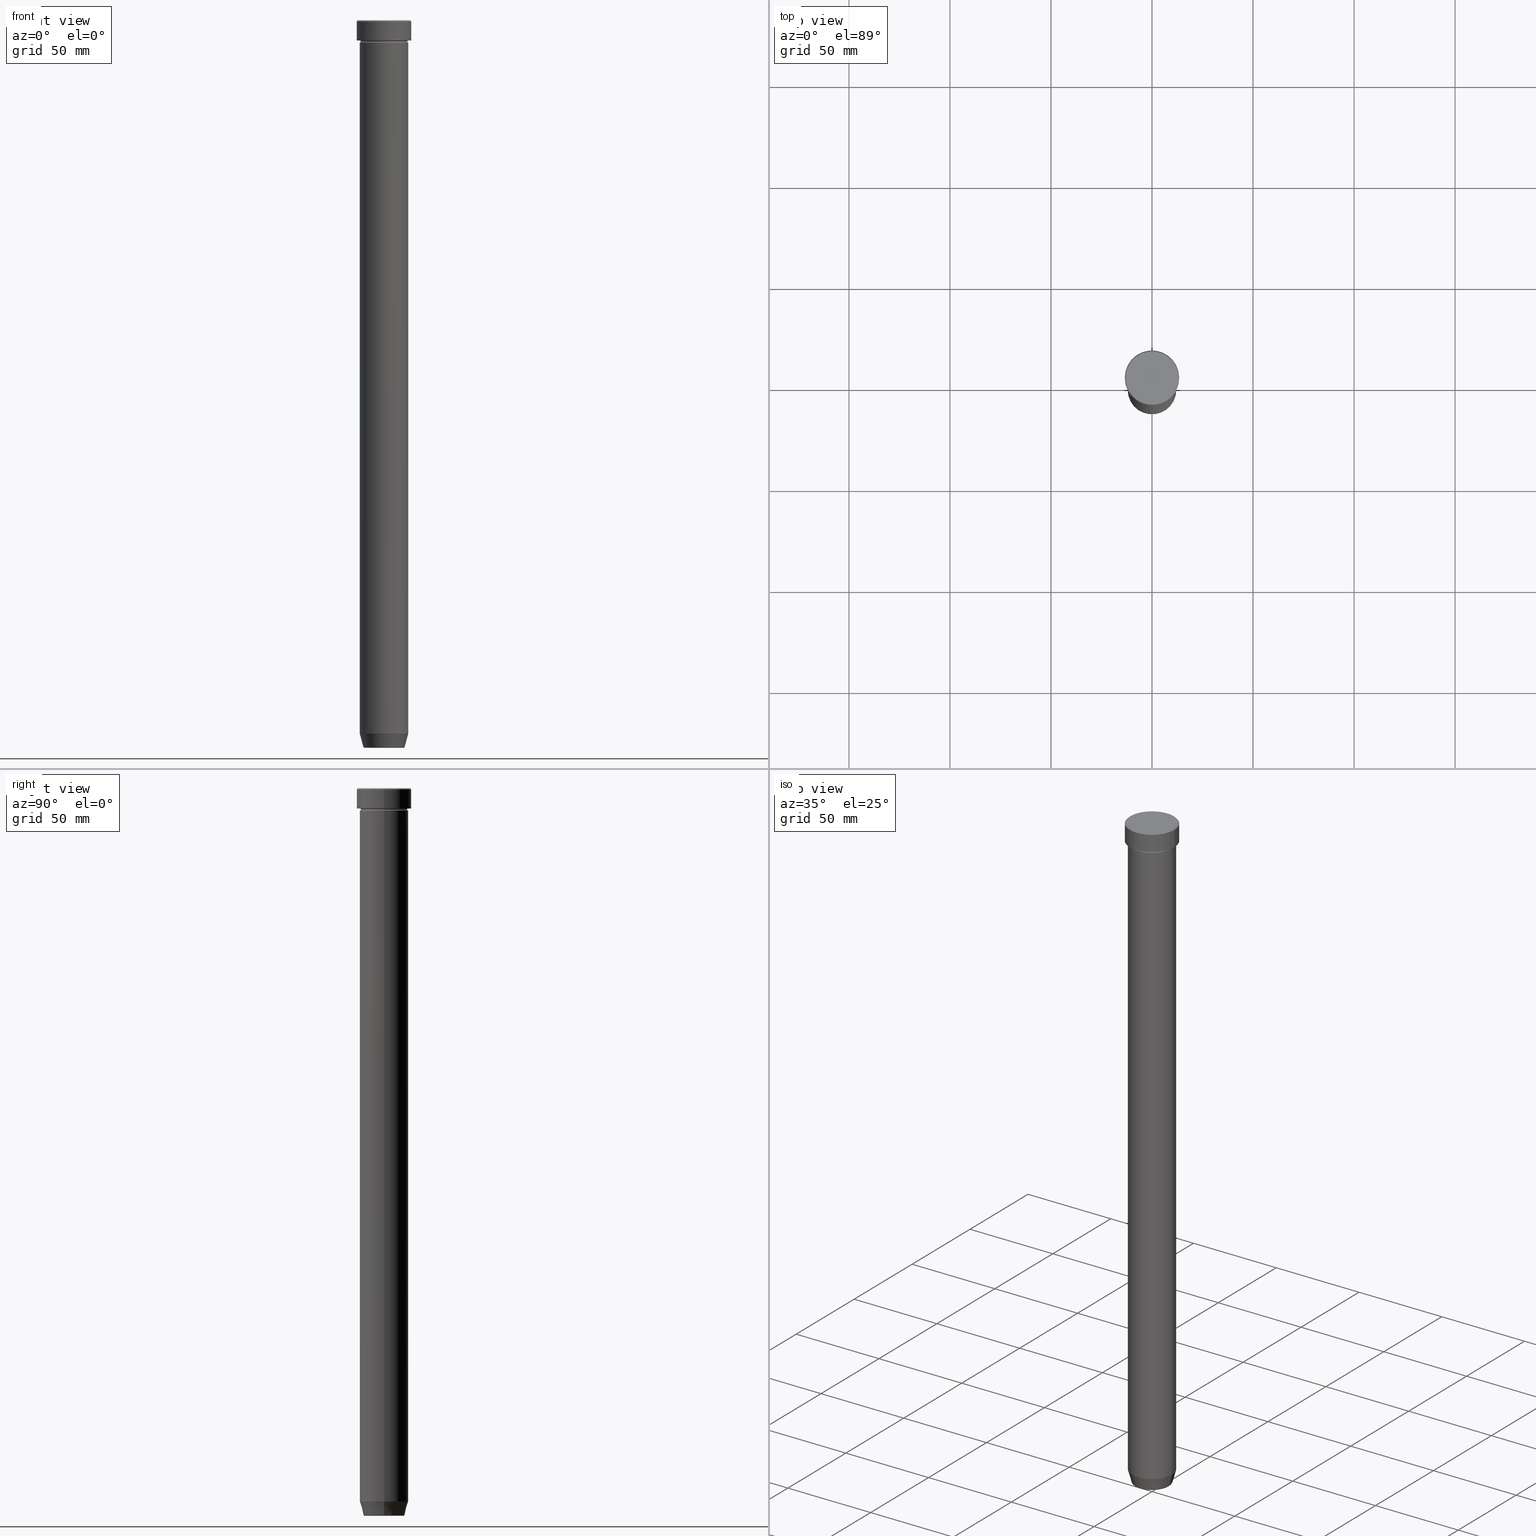
[diagram: canonical four-view strip — front | top / right | iso, engineering-drawing reading convention]
A machine part, canonical four-view strip (front | top / right | iso — engineering-drawing reading convention). The complete STEP part file that produces these views, byte-faithful:
ISO-10303-21;
HEADER;
FILE_DESCRIPTION (( 'STEP AP203' ),
    '1' );
FILE_NAME ('75dd.STEP',
    '2024-01-02T17:39:47',
    ( '' ),
    ( '' ),
    'SwSTEP 2.0',
    'SolidWorks 2019',
    '' );
FILE_SCHEMA (( 'CONFIG_CONTROL_DESIGN' ));
ENDSEC;

DATA;
#1 = ORIENTED_EDGE ( 'NONE', *, *, #330, .F. ) ;
#2 = CARTESIAN_POINT ( 'NONE',  ( 0.000000000000000000, 0.000000000000000000, -27.00000000000000000 ) ) ;
#3 = DIRECTION ( 'NONE',  ( 0.000000000000000000, 0.000000000000000000, -1.000000000000000000 ) ) ;
#4 = VERTEX_POINT ( 'NONE', #591 ) ;
#5 = DIRECTION ( 'NONE',  ( -0.000000000000000000, -0.000000000000000000, 1.000000000000000000 ) ) ;
#6 = TOROIDAL_SURFACE ( 'NONE', #549, 9.740692158992644067, 0.5000000000000000000 ) ;
#7 = APPROVAL_PERSON_ORGANIZATION ( #415, #57, #50 ) ;
#8 = DIRECTION ( 'NONE',  ( -0.000000000000000000, -0.000000000000000000, 1.000000000000000000 ) ) ;
#9 = AXIS2_PLACEMENT_3D ( 'NONE', #372, #321, #284 ) ;
#10 = CARTESIAN_POINT ( 'NONE',  ( 0.000000000000000000, 0.000000000000000000, -360.0000000000000568 ) ) ;
#11 = ORIENTED_EDGE ( 'NONE', *, *, #117, .T. ) ;
#12 = PLANE ( 'NONE',  #506 ) ;
#13 = ADVANCED_FACE ( 'NONE', ( #184 ), #190, .T. ) ;
#14 = AXIS2_PLACEMENT_3D ( 'NONE', #88, #381, #518 ) ;
#15 = DIRECTION ( 'NONE',  ( -0.000000000000000000, -0.000000000000000000, 1.000000000000000000 ) ) ;
#16 = AXIS2_PLACEMENT_3D ( 'NONE', #256, #436, #251 ) ;
#17 = CARTESIAN_POINT ( 'NONE',  ( 0.000000000000000000, 0.000000000000000000, 0.000000000000000000 ) ) ;
#18 = EDGE_LOOP ( 'NONE', ( #120, #365, #574, #249 ) ) ;
#19 = ADVANCED_BREP_SHAPE_REPRESENTATION ( '75dd', ( #367, #163, #180 ), #56 ) ;
#20 = DIRECTION ( 'NONE',  ( -0.000000000000000000, -0.000000000000000000, 1.000000000000000000 ) ) ;
#21 = VERTEX_POINT ( 'NONE', #454 ) ;
#22 = CARTESIAN_POINT ( 'NONE',  ( -12.99999999999999645, 0.000000000000000000, 0.000000000000000000 ) ) ;
#23 = DIRECTION ( 'NONE',  ( 0.000000000000000000, 0.000000000000000000, -1.000000000000000000 ) ) ;
#24 = ADVANCED_FACE ( 'NONE', ( #32, #409 ), #379, .T. ) ;
#25 = CARTESIAN_POINT ( 'NONE',  ( 0.000000000000000000, 0.000000000000000000, 0.000000000000000000 ) ) ;
#26 = ORIENTED_EDGE ( 'NONE', *, *, #497, .T. ) ;
#27 = PERSON_AND_ORGANIZATION_ROLE ( 'design_supplier' ) ;
#28 = DIRECTION ( 'NONE',  ( 1.224646799147353207E-16, 1.000000000000000000, 0.000000000000000000 ) ) ;
#29 = ORIENTED_EDGE ( 'NONE', *, *, #275, .F. ) ;
#30 = EDGE_LOOP ( 'NONE', ( #452, #318 ) ) ;
#31 = ADVANCED_FACE ( 'NONE', ( #37 ), #461, .F. ) ;
#32 = FACE_BOUND ( 'NONE', #404, .T. ) ;
#33 = DIRECTION ( 'NONE',  ( 0.000000000000000000, 0.000000000000000000, 1.000000000000000000 ) ) ;
#34 = PRODUCT ( '75dd', '75dd', '', ( #537 ) ) ;
#35 = AXIS2_PLACEMENT_3D ( 'NONE', #589, #530, #401 ) ;
#36 = AXIS2_PLACEMENT_3D ( 'NONE', #364, #76, #369 ) ;
#37 = FACE_OUTER_BOUND ( 'NONE', #430, .T. ) ;
#38 = CARTESIAN_POINT ( 'NONE',  ( 0.000000000000000000, 0.000000000000000000, -359.5000000000000568 ) ) ;
#39 = ORIENTED_EDGE ( 'NONE', *, *, #164, .F. ) ;
#40 = CARTESIAN_POINT ( 'NONE',  ( -12.00000000000000000, 0.000000000000000000, -9.999999999999998224 ) ) ;
#41 = CC_DESIGN_PERSON_AND_ORGANIZATION_ASSIGNMENT ( #402, #501, ( #310 ) ) ;
#42 = CARTESIAN_POINT ( 'NONE',  ( 0.000000000000000000, 0.000000000000000000, -10.49999999999999822 ) ) ;
#43 = CARTESIAN_POINT ( 'NONE',  ( 0.000000000000000000, 0.000000000000000000, -11.00000000000000000 ) ) ;
#44 = CC_DESIGN_PERSON_AND_ORGANIZATION_ASSIGNMENT ( #516, #551, ( #138 ) ) ;
#45 = AXIS2_PLACEMENT_3D ( 'NONE', #423, #130, #511 ) ;
#46 = EDGE_LOOP ( 'NONE', ( #375, #229, #493, #514 ) ) ;
#47 = CC_DESIGN_SECURITY_CLASSIFICATION ( #138, ( #189 ) ) ;
#48 = DIRECTION ( 'NONE',  ( -0.000000000000000000, -0.000000000000000000, 1.000000000000000000 ) ) ;
#49 = VERTEX_POINT ( 'NONE', #89 ) ;
#50 = APPROVAL_ROLE ( '' ) ;
#51 = CARTESIAN_POINT ( 'NONE',  ( 0.000000000000000000, 0.000000000000000000, -10.49999999999999822 ) ) ;
#52 = EDGE_CURVE ( 'NONE', #176, #21, #280, .T. ) ;
#53 = DIRECTION ( 'NONE',  ( 0.2588190451025233485, 0.000000000000000000, 0.9659258262890675351 ) ) ;
#54 = ORIENTED_EDGE ( 'NONE', *, *, #320, .F. ) ;
#55 = AXIS2_PLACEMENT_3D ( 'NONE', #552, #188, #599 ) ;
#56 =( GEOMETRIC_REPRESENTATION_CONTEXT ( 3 ) GLOBAL_UNCERTAINTY_ASSIGNED_CONTEXT ( ( #564 ) ) GLOBAL_UNIT_ASSIGNED_CONTEXT ( ( #166, #220, #112 ) ) REPRESENTATION_CONTEXT ( 'NONE', 'WORKASPACE' ) );
#57 = APPROVAL ( #331, 'NEUR�EN�' ) ;
#58 = LINE ( 'NONE', #565, #477 ) ;
#59 = CARTESIAN_POINT ( 'NONE',  ( 12.00000000000000000, 0.000000000000000000, 0.000000000000000000 ) ) ;
#60 = ADVANCED_FACE ( 'NONE', ( #503 ), #467, .T. ) ;
#61 = ORIENTED_EDGE ( 'NONE', *, *, #330, .T. ) ;
#62 = CARTESIAN_POINT ( 'NONE',  ( 0.000000000000000000, 0.000000000000000000, 0.000000000000000000 ) ) ;
#63 = DIRECTION ( 'NONE',  ( -1.000000000000000000, 1.224646799147353454E-16, 0.000000000000000000 ) ) ;
#64 = AXIS2_PLACEMENT_3D ( 'NONE', #133, #470, #592 ) ;
#65 = FACE_OUTER_BOUND ( 'NONE', #355, .T. ) ;
#66 = ORIENTED_EDGE ( 'NONE', *, *, #87, .T. ) ;
#67 = DIRECTION ( 'NONE',  ( 1.000000000000000000, 0.000000000000000000, 0.000000000000000000 ) ) ;
#68 = CIRCLE ( 'NONE', #35, 11.50000000000000000 ) ;
#69 = EDGE_CURVE ( 'NONE', #481, #314, #86, .T. ) ;
#70 = VERTEX_POINT ( 'NONE', #240 ) ;
#71 = CARTESIAN_POINT ( 'NONE',  ( -11.50000000000000000, 1.438959988998139963E-15, -10.49999999999999822 ) ) ;
#72 = FACE_OUTER_BOUND ( 'NONE', #217, .T. ) ;
#73 = ORIENTED_EDGE ( 'NONE', *, *, #356, .T. ) ;
#74 = PERSON_AND_ORGANIZATION ( #324, #524 ) ;
#75 = DIRECTION ( 'NONE',  ( -0.2588190451025233485, 3.169619151431796372E-17, 0.9659258262890675351 ) ) ;
#76 = DIRECTION ( 'NONE',  ( -0.000000000000000000, -0.000000000000000000, 1.000000000000000000 ) ) ;
#77 = AXIS2_PLACEMENT_3D ( 'NONE', #25, #114, #106 ) ;
#78 = LOCAL_TIME ( 18, 39, 47.00000000000000000, #373 ) ;
#79 = ADVANCED_FACE ( 'NONE', ( #198 ), #238, .T. ) ;
#80 = ORIENTED_EDGE ( 'NONE', *, *, #378, .F. ) ;
#81 = DATE_AND_TIME ( #121, #577 ) ;
#82 = APPROVAL_STATUS ( 'not_yet_approved' ) ;
#83 = CARTESIAN_POINT ( 'NONE',  ( -10.22365507213716995, 1.360806402472381364E-15, -359.6294095225512706 ) ) ;
#84 = VECTOR ( 'NONE', #206, 1000.000000000000000 ) ;
#85 = ORIENTED_EDGE ( 'NONE', *, *, #520, .T. ) ;
#86 = CIRCLE ( 'NONE', #246, 9.740692158992644067 ) ;
#87 = EDGE_CURVE ( 'NONE', #215, #135, #290, .T. ) ;
#88 = CARTESIAN_POINT ( 'NONE',  ( 0.000000000000000000, 0.000000000000000000, 0.000000000000000000 ) ) ;
#89 = CARTESIAN_POINT ( 'NONE',  ( -12.00000000000000000, 1.469576158976823947E-15, -353.0000000000000568 ) ) ;
#90 = DATE_AND_TIME ( #557, #596 ) ;
#91 = CARTESIAN_POINT ( 'NONE',  ( 0.000000000000000000, 3.796405077356795904E-14, -360.0000000000000568 ) ) ;
#92 = DIRECTION ( 'NONE',  ( 1.000000000000000000, 0.000000000000000000, 0.000000000000000000 ) ) ;
#93 = AXIS2_PLACEMENT_3D ( 'NONE', #579, #28, #63 ) ;
#94 = COORDINATED_UNIVERSAL_TIME_OFFSET ( 1, 0, .AHEAD. ) ;
#95 = CARTESIAN_POINT ( 'NONE',  ( 0.000000000000000000, 0.000000000000000000, -360.0000000000000568 ) ) ;
#96 = EDGE_CURVE ( 'NONE', #49, #287, #172, .T. ) ;
#97 = CARTESIAN_POINT ( 'NONE',  ( 0.000000000000000000, 0.000000000000000000, -353.0000000000000568 ) ) ;
#98 = DIRECTION ( 'NONE',  ( 1.000000000000000000, 0.000000000000000000, 0.000000000000000000 ) ) ;
#99 = DIRECTION ( 'NONE',  ( -1.000000000000000000, 0.000000000000000000, 0.000000000000000000 ) ) ;
#100 = CIRCLE ( 'NONE', #16, 12.00000000000000000 ) ;
#101 = EDGE_CURVE ( 'NONE', #433, #572, #68, .T. ) ;
#102 = DIRECTION ( 'NONE',  ( 1.000000000000000000, 0.000000000000000000, 0.000000000000000000 ) ) ;
#103 = ORIENTED_EDGE ( 'NONE', *, *, #513, .F. ) ;
#104 = CYLINDRICAL_SURFACE ( 'NONE', #336, 12.00000000000000000 ) ;
#105 = EDGE_LOOP ( 'NONE', ( #224, #113, #103, #1 ) ) ;
#106 = DIRECTION ( 'NONE',  ( -1.000000000000000000, 0.000000000000000000, 0.000000000000000000 ) ) ;
#107 = DIRECTION ( 'NONE',  ( 0.000000000000000000, 0.000000000000000000, -1.000000000000000000 ) ) ;
#108 = ORIENTED_EDGE ( 'NONE', *, *, #134, .F. ) ;
#109 = CIRCLE ( 'NONE', #168, 0.5000000000000004441 ) ;
#110 = VECTOR ( 'NONE', #141, 1000.000000000000000 ) ;
#111 = CARTESIAN_POINT ( 'NONE',  ( -12.00000000000000000, 1.469576158976823947E-15, -11.00000000000000000 ) ) ;
#112 =( NAMED_UNIT ( * ) SI_UNIT ( $, .STERADIAN. ) SOLID_ANGLE_UNIT ( ) );
#113 = ORIENTED_EDGE ( 'NONE', *, *, #320, .T. ) ;
#114 = DIRECTION ( 'NONE',  ( 0.000000000000000000, 0.000000000000000000, -1.000000000000000000 ) ) ;
#115 = VERTEX_POINT ( 'NONE', #413 ) ;
#116 = CARTESIAN_POINT ( 'NONE',  ( 0.000000000000000000, 0.000000000000000000, 0.000000000000000000 ) ) ;
#117 = EDGE_CURVE ( 'NONE', #481, #237, #244, .T. ) ;
#118 = VECTOR ( 'NONE', #374, 1000.000000000000000 ) ;
#119 = ORIENTED_EDGE ( 'NONE', *, *, #175, .T. ) ;
#120 = ORIENTED_EDGE ( 'NONE', *, *, #536, .F. ) ;
#121 = CALENDAR_DATE ( 2024, 2, 1 ) ;
#122 = DATE_AND_TIME ( #543, #78 ) ;
#123 = CARTESIAN_POINT ( 'NONE',  ( 12.00000000000000000, 0.000000000000000000, -27.00000000000000000 ) ) ;
#124 = EDGE_CURVE ( 'NONE', #237, #49, #262, .T. ) ;
#125 = LINE ( 'NONE', #554, #538 ) ;
#126 = AXIS2_PLACEMENT_3D ( 'NONE', #598, #419, #466 ) ;
#127 = ORIENTED_EDGE ( 'NONE', *, *, #124, .T. ) ;
#128 = DIRECTION ( 'NONE',  ( -1.000000000000000000, 0.000000000000000000, -0.000000000000000000 ) ) ;
#129 = DATE_AND_TIME ( #384, #316 ) ;
#130 = DIRECTION ( 'NONE',  ( -0.000000000000000000, -1.000000000000000000, -0.000000000000000000 ) ) ;
#131 = ORIENTED_EDGE ( 'NONE', *, *, #96, .T. ) ;
#132 = DIRECTION ( 'NONE',  ( -0.000000000000000000, -0.000000000000000000, 1.000000000000000000 ) ) ;
#133 = CARTESIAN_POINT ( 'NONE',  ( 9.740692158992644067, 0.000000000000000000, -359.5000000000000568 ) ) ;
#134 = EDGE_CURVE ( 'NONE', #70, #187, #325, .T. ) ;
#135 = VERTEX_POINT ( 'NONE', #587 ) ;
#136 = CIRCLE ( 'NONE', #420, 10.22365507213716995 ) ;
#137 = AXIS2_PLACEMENT_3D ( 'NONE', #403, #313, #92 ) ;
#138 = SECURITY_CLASSIFICATION ( '', '', #212 ) ;
#139 = PLANE ( 'NONE',  #14 ) ;
#140 = ORIENTED_EDGE ( 'NONE', *, *, #442, .T. ) ;
#141 = DIRECTION ( 'NONE',  ( -0.000000000000000000, -0.000000000000000000, 1.000000000000000000 ) ) ;
#142 = EDGE_LOOP ( 'NONE', ( #207, #269, #450, #344 ) ) ;
#143 = APPROVAL ( #82, 'NEUR�EN�' ) ;
#144 = CARTESIAN_POINT ( 'NONE',  ( -9.740692158992644067, 1.222463696683473224E-15, -360.0000000000000568 ) ) ;
#145 = CIRCLE ( 'NONE', #346, 12.00000000000000000 ) ;
#146 = VECTOR ( 'NONE', #567, 1000.000000000000000 ) ;
#147 = DIRECTION ( 'NONE',  ( 0.7071067811865439090, 8.659560562354888485E-17, -0.7071067811865512365 ) ) ;
#148 = ORIENTED_EDGE ( 'NONE', *, *, #241, .F. ) ;
#149 = AXIS2_PLACEMENT_3D ( 'NONE', #427, #424, #342 ) ;
#150 = CARTESIAN_POINT ( 'NONE',  ( 12.99999999999999645, 1.622657008870242882E-15, 0.000000000000000000 ) ) ;
#151 = DIRECTION ( 'NONE',  ( 0.000000000000000000, 0.000000000000000000, -1.000000000000000000 ) ) ;
#152 = CARTESIAN_POINT ( 'NONE',  ( 12.99999999999999645, 1.592040838891558701E-15, 0.000000000000000000 ) ) ;
#153 = EDGE_CURVE ( 'NONE', #237, #243, #136, .T. ) ;
#154 = DIRECTION ( 'NONE',  ( -0.000000000000000000, -0.000000000000000000, 1.000000000000000000 ) ) ;
#155 = ORIENTED_EDGE ( 'NONE', *, *, #265, .T. ) ;
#156 = VECTOR ( 'NONE', #75, 1000.000000000000227 ) ;
#157 = TOROIDAL_SURFACE ( 'NONE', #245, 12.00000000000000000, 0.5000000000000000000 ) ;
#158 = COORDINATED_UNIVERSAL_TIME_OFFSET ( 1, 0, .AHEAD. ) ;
#159 = AXIS2_PLACEMENT_3D ( 'NONE', #457, #595, #225 ) ;
#160 = CARTESIAN_POINT ( 'NONE',  ( 0.000000000000000000, 0.000000000000000000, -359.6294095225512706 ) ) ;
#161 = ORIENTED_EDGE ( 'NONE', *, *, #389, .F. ) ;
#162 = CARTESIAN_POINT ( 'NONE',  ( 0.000000000000000000, 0.000000000000000000, -10.49999999999999822 ) ) ;
#163 = MANIFOLD_SOLID_BREP ( 'Zaoblit4', #490 ) ;
#164 = EDGE_CURVE ( 'NONE', #489, #227, #315, .T. ) ;
#165 = EDGE_LOOP ( 'NONE', ( #437, #561 ) ) ;
#166 =( LENGTH_UNIT ( ) NAMED_UNIT ( * ) SI_UNIT ( .MILLI., .METRE. ) );
#167 = DIRECTION ( 'NONE',  ( 1.000000000000000000, 0.000000000000000000, 0.000000000000000000 ) ) ;
#168 = AXIS2_PLACEMENT_3D ( 'NONE', #463, #226, #151 ) ;
#169 = AXIS2_PLACEMENT_3D ( 'NONE', #396, #20, #343 ) ;
#170 = ORIENTED_EDGE ( 'NONE', *, *, #253, .T. ) ;
#171 = DIRECTION ( 'NONE',  ( 0.000000000000000000, 0.000000000000000000, -1.000000000000000000 ) ) ;
#172 = CIRCLE ( 'NONE', #338, 12.00000000000000000 ) ;
#173 = APPROVAL_STATUS ( 'not_yet_approved' ) ;
#174 = LINE ( 'NONE', #22, #84 ) ;
#175 = EDGE_CURVE ( 'NONE', #465, #21, #174, .T. ) ;
#176 = VERTEX_POINT ( 'NONE', #358 ) ;
#177 = FACE_OUTER_BOUND ( 'NONE', #46, .T. ) ;
#178 = DIRECTION ( 'NONE',  ( 1.000000000000000000, 0.000000000000000000, 0.000000000000000000 ) ) ;
#179 = CARTESIAN_POINT ( 'NONE',  ( 0.000000000000000000, 0.000000000000000000, -0.5000000000000091038 ) ) ;
#180 = AXIS2_PLACEMENT_3D ( 'NONE', #362, #33, #453 ) ;
#181 = CARTESIAN_POINT ( 'NONE',  ( 0.000000000000000000, 13.50000000000000000, -9.999999999999998224 ) ) ;
#182 = APPLICATION_CONTEXT ( 'configuration controlled 3d designs of mechanical parts and assemblies' ) ;
#183 = DIRECTION ( 'NONE',  ( 1.000000000000000000, 0.000000000000000000, 0.000000000000000000 ) ) ;
#184 = FACE_OUTER_BOUND ( 'NONE', #142, .T. ) ;
#185 = EDGE_CURVE ( 'NONE', #4, #176, #496, .T. ) ;
#186 = PLANE ( 'NONE',  #199 ) ;
#187 = VERTEX_POINT ( 'NONE', #111 ) ;
#188 = DIRECTION ( 'NONE',  ( -0.000000000000000000, -0.000000000000000000, 1.000000000000000000 ) ) ;
#189 = PRODUCT_DEFINITION_FORMATION_WITH_SPECIFIED_SOURCE ( 'LIBOVOLN�', '', #34, .NOT_KNOWN. ) ;
#190 = CONICAL_SURFACE ( 'NONE', #191, 10.12435565298211948, 0.2617993877991521279 ) ;
#191 = AXIS2_PLACEMENT_3D ( 'NONE', #414, #132, #178 ) ;
#192 = FACE_OUTER_BOUND ( 'NONE', #386, .T. ) ;
#193 = EDGE_CURVE ( 'NONE', #135, #215, #335, .T. ) ;
#194 = ORIENTED_EDGE ( 'NONE', *, *, #193, .F. ) ;
#195 = DIRECTION ( 'NONE',  ( 1.000000000000000000, 0.000000000000000000, 0.000000000000000000 ) ) ;
#196 = CC_DESIGN_PERSON_AND_ORGANIZATION_ASSIGNMENT ( #74, #264, ( #189 ) ) ;
#197 = CARTESIAN_POINT ( 'NONE',  ( -12.00000000000000000, 1.469576158976823947E-15, 0.000000000000000000 ) ) ;
#198 = FACE_OUTER_BOUND ( 'NONE', #329, .T. ) ;
#199 = AXIS2_PLACEMENT_3D ( 'NONE', #91, #288, #426 ) ;
#200 = AXIS2_PLACEMENT_3D ( 'NONE', #483, #393, #201 ) ;
#201 = DIRECTION ( 'NONE',  ( 1.000000000000000000, 0.000000000000000000, 0.000000000000000000 ) ) ;
#202 = ORIENTED_EDGE ( 'NONE', *, *, #459, .T. ) ;
#203 = CYLINDRICAL_SURFACE ( 'NONE', #304, 13.50000000000000000 ) ;
#204 = ADVANCED_FACE ( 'NONE', ( #177 ), #428, .T. ) ;
#205 = DIRECTION ( 'NONE',  ( -0.000000000000000000, -0.000000000000000000, 1.000000000000000000 ) ) ;
#206 = DIRECTION ( 'NONE',  ( -0.7071067811865439090, 0.000000000000000000, -0.7071067811865512365 ) ) ;
#207 = ORIENTED_EDGE ( 'NONE', *, *, #124, .F. ) ;
#208 = PERSON_AND_ORGANIZATION ( #324, #524 ) ;
#209 = DIRECTION ( 'NONE',  ( -0.000000000000000000, -0.000000000000000000, 1.000000000000000000 ) ) ;
#210 = CIRCLE ( 'NONE', #233, 13.50000000000000000 ) ;
#211 = LOCAL_TIME ( 18, 39, 47.00000000000000000, #158 ) ;
#212 = SECURITY_CLASSIFICATION_LEVEL ( 'unclassified' ) ;
#213 = ADVANCED_FACE ( 'NONE', ( #487 ), #203, .T. ) ;
#214 = AXIS2_PLACEMENT_3D ( 'NONE', #2, #556, #337 ) ;
#215 = VERTEX_POINT ( 'NONE', #123 ) ;
#216 = APPLICATION_PROTOCOL_DEFINITION ( 'international standard', 'config_control_design', 1994, #182 ) ;
#217 = EDGE_LOOP ( 'NONE', ( #583, #26, #495, #231 ) ) ;
#218 = APPLICATION_PROTOCOL_DEFINITION ( 'international standard', 'config_control_design', 1994, #383 ) ;
#219 = AXIS2_PLACEMENT_3D ( 'NONE', #444, #154, #222 ) ;
#220 =( NAMED_UNIT ( * ) PLANE_ANGLE_UNIT ( ) SI_UNIT ( $, .RADIAN. ) );
#221 = CC_DESIGN_APPROVAL ( #143, ( #310 ) ) ;
#222 = DIRECTION ( 'NONE',  ( 1.000000000000000000, 0.000000000000000000, 0.000000000000000000 ) ) ;
#223 = CIRCLE ( 'NONE', #200, 12.00000000000000000 ) ;
#224 = ORIENTED_EDGE ( 'NONE', *, *, #101, .T. ) ;
#225 = DIRECTION ( 'NONE',  ( 1.000000000000000000, 0.000000000000000000, 0.000000000000000000 ) ) ;
#226 = DIRECTION ( 'NONE',  ( 0.000000000000000000, -1.000000000000000000, 0.000000000000000000 ) ) ;
#227 = VERTEX_POINT ( 'NONE', #504 ) ;
#228 = CYLINDRICAL_SURFACE ( 'NONE', #277, 12.00000000000000000 ) ;
#229 = ORIENTED_EDGE ( 'NONE', *, *, #432, .F. ) ;
#230 = ORIENTED_EDGE ( 'NONE', *, *, #241, .T. ) ;
#231 = ORIENTED_EDGE ( 'NONE', *, *, #175, .F. ) ;
#232 = DIRECTION ( 'NONE',  ( 1.000000000000000000, 0.000000000000000000, 0.000000000000000000 ) ) ;
#233 = AXIS2_PLACEMENT_3D ( 'NONE', #179, #3, #339 ) ;
#234 = ADVANCED_FACE ( 'NONE', ( #72 ), #387, .T. ) ;
#235 = EDGE_LOOP ( 'NONE', ( #155, #85, #422, #540 ) ) ;
#236 = FACE_OUTER_BOUND ( 'NONE', #361, .T. ) ;
#237 = VERTEX_POINT ( 'NONE', #83 ) ;
#238 = PLANE ( 'NONE',  #149 ) ;
#239 = CARTESIAN_POINT ( 'NONE',  ( 0.000000000000000000, 0.000000000000000000, -353.0000000000000568 ) ) ;
#240 = CARTESIAN_POINT ( 'NONE',  ( 12.00000000000000000, 0.000000000000000000, -11.00000000000000000 ) ) ;
#241 = EDGE_CURVE ( 'NONE', #572, #70, #109, .T. ) ;
#242 = CARTESIAN_POINT ( 'NONE',  ( -13.50000000000000000, 1.653273178848926867E-15, -10.00000000000000000 ) ) ;
#243 = VERTEX_POINT ( 'NONE', #252 ) ;
#244 = CIRCLE ( 'NONE', #93, 0.5000000000000004441 ) ;
#245 = AXIS2_PLACEMENT_3D ( 'NONE', #162, #270, #167 ) ;
#246 = AXIS2_PLACEMENT_3D ( 'NONE', #588, #522, #347 ) ;
#247 = DIRECTION ( 'NONE',  ( -1.000000000000000000, 0.000000000000000000, 0.000000000000000000 ) ) ;
#248 = PRODUCT_RELATED_PRODUCT_CATEGORY ( 'detail', '', ( #34 ) ) ;
#249 = ORIENTED_EDGE ( 'NONE', *, *, #356, .F. ) ;
#250 = CARTESIAN_POINT ( 'NONE',  ( 11.50000000000000000, 0.000000000000000000, -10.49999999999999822 ) ) ;
#251 = DIRECTION ( 'NONE',  ( -1.000000000000000000, 0.000000000000000000, 0.000000000000000000 ) ) ;
#252 = CARTESIAN_POINT ( 'NONE',  ( 10.22365507213716995, 0.000000000000000000, -359.6294095225512706 ) ) ;
#253 = EDGE_CURVE ( 'NONE', #274, #4, #469, .T. ) ;
#254 = AXIS2_PLACEMENT_3D ( 'NONE', #43, #519, #559 ) ;
#255 = AXIS2_PLACEMENT_3D ( 'NONE', #431, #570, #297 ) ;
#256 = CARTESIAN_POINT ( 'NONE',  ( 0.000000000000000000, 0.000000000000000000, -9.999999999999998224 ) ) ;
#257 = ORIENTED_EDGE ( 'NONE', *, *, #474, .T. ) ;
#258 = DIRECTION ( 'NONE',  ( -0.000000000000000000, -0.000000000000000000, 1.000000000000000000 ) ) ;
#259 = ORIENTED_EDGE ( 'NONE', *, *, #101, .F. ) ;
#260 = LINE ( 'NONE', #152, #499 ) ;
#261 = ORIENTED_EDGE ( 'NONE', *, *, #553, .T. ) ;
#262 = LINE ( 'NONE', #301, #156 ) ;
#263 = ORIENTED_EDGE ( 'NONE', *, *, #69, .T. ) ;
#264 = PERSON_AND_ORGANIZATION_ROLE ( 'creator' ) ;
#265 = EDGE_CURVE ( 'NONE', #4, #274, #394, .T. ) ;
#266 = CIRCLE ( 'NONE', #45, 0.5000000000000004441 ) ;
#267 = APPROVAL_PERSON_ORGANIZATION ( #585, #282, #360 ) ;
#268 = CYLINDRICAL_SURFACE ( 'NONE', #449, 12.00000000000000000 ) ;
#269 = ORIENTED_EDGE ( 'NONE', *, *, #153, .T. ) ;
#270 = DIRECTION ( 'NONE',  ( -0.000000000000000000, -0.000000000000000000, 1.000000000000000000 ) ) ;
#271 = ORIENTED_EDGE ( 'NONE', *, *, #69, .F. ) ;
#272 = EDGE_LOOP ( 'NONE', ( #317, #131, #261, #485 ) ) ;
#273 = PERSON_AND_ORGANIZATION ( #324, #524 ) ;
#274 = VERTEX_POINT ( 'NONE', #242 ) ;
#275 = EDGE_CURVE ( 'NONE', #465, #498, #576, .T. ) ;
#276 = VERTEX_POINT ( 'NONE', #40 ) ;
#277 = AXIS2_PLACEMENT_3D ( 'NONE', #283, #8, #382 ) ;
#278 = FACE_OUTER_BOUND ( 'NONE', #272, .T. ) ;
#279 = DIRECTION ( 'NONE',  ( -0.000000000000000000, -0.000000000000000000, 1.000000000000000000 ) ) ;
#280 = CIRCLE ( 'NONE', #9, 13.50000000000000000 ) ;
#281 = EDGE_LOOP ( 'NONE', ( #66, #445, #108, #529 ) ) ;
#282 = APPROVAL ( #173, 'NEUR�EN�' ) ;
#283 = CARTESIAN_POINT ( 'NONE',  ( 0.000000000000000000, 0.000000000000000000, 0.000000000000000000 ) ) ;
#284 = DIRECTION ( 'NONE',  ( 1.000000000000000000, 0.000000000000000000, 0.000000000000000000 ) ) ;
#285 = SHAPE_DEFINITION_REPRESENTATION ( #510, #19 ) ;
#286 = ADVANCED_FACE ( 'NONE', ( #236 ), #186, .F. ) ;
#287 = VERTEX_POINT ( 'NONE', #328 ) ;
#288 = DIRECTION ( 'NONE',  ( 0.000000000000000000, -0.000000000000000000, 1.000000000000000000 ) ) ;
#289 = CIRCLE ( 'NONE', #64, 0.5000000000000004441 ) ;
#290 = CIRCLE ( 'NONE', #214, 12.00000000000000000 ) ;
#291 = DIRECTION ( 'NONE',  ( 0.000000000000000000, 0.000000000000000000, -1.000000000000000000 ) ) ;
#292 = EDGE_CURVE ( 'NONE', #21, #176, #210, .T. ) ;
#293 = DIRECTION ( 'NONE',  ( -1.000000000000000000, -1.224646799147353454E-16, 0.000000000000000000 ) ) ;
#294 = FACE_OUTER_BOUND ( 'NONE', #363, .T. ) ;
#295 = AXIS2_PLACEMENT_3D ( 'NONE', #439, #279, #398 ) ;
#296 = TOROIDAL_SURFACE ( 'NONE', #517, 12.00000000000000000, 0.5000000000000000000 ) ;
#297 = DIRECTION ( 'NONE',  ( 1.000000000000000000, 0.000000000000000000, 0.000000000000000000 ) ) ;
#298 = ORIENTED_EDGE ( 'NONE', *, *, #497, .F. ) ;
#299 = CARTESIAN_POINT ( 'NONE',  ( 0.000000000000000000, 0.000000000000000000, -27.00000000000000000 ) ) ;
#300 = CC_DESIGN_DATE_AND_TIME_ASSIGNMENT ( #412, #322, ( #310 ) ) ;
#301 = CARTESIAN_POINT ( 'NONE',  ( -10.12435565298211948, 1.239875974385396377E-15, -360.0000000000000568 ) ) ;
#302 = DIRECTION ( 'NONE',  ( -1.000000000000000000, 0.000000000000000000, 0.000000000000000000 ) ) ;
#303 = ORIENTED_EDGE ( 'NONE', *, *, #52, .T. ) ;
#304 = AXIS2_PLACEMENT_3D ( 'NONE', #17, #377, #309 ) ;
#305 = DIRECTION ( 'NONE',  ( 1.000000000000000000, 0.000000000000000000, 0.000000000000000000 ) ) ;
#306 = VECTOR ( 'NONE', #482, 1000.000000000000000 ) ;
#307 = ORIENTED_EDGE ( 'NONE', *, *, #392, .F. ) ;
#308 = CARTESIAN_POINT ( 'NONE',  ( 0.000000000000000000, 0.000000000000000000, -10.49999999999999822 ) ) ;
#309 = DIRECTION ( 'NONE',  ( 1.000000000000000000, 0.000000000000000000, 0.000000000000000000 ) ) ;
#310 = PRODUCT_DEFINITION ( 'NEZN�M�', '', #189, #479 ) ;
#311 = ORIENTED_EDGE ( 'NONE', *, *, #52, .F. ) ;
#312 = PERSON_AND_ORGANIZATION_ROLE ( 'design_owner' ) ;
#313 = DIRECTION ( 'NONE',  ( -0.000000000000000000, -0.000000000000000000, 1.000000000000000000 ) ) ;
#314 = VERTEX_POINT ( 'NONE', #385 ) ;
#315 = CIRCLE ( 'NONE', #219, 12.00000000000000000 ) ;
#316 = LOCAL_TIME ( 18, 39, 47.00000000000000000, #509 ) ;
#317 = ORIENTED_EDGE ( 'NONE', *, *, #459, .F. ) ;
#318 = ORIENTED_EDGE ( 'NONE', *, *, #593, .T. ) ;
#319 = APPROVAL_DATE_TIME ( #81, #143 ) ;
#320 = EDGE_CURVE ( 'NONE', #572, #115, #533, .T. ) ;
#321 = DIRECTION ( 'NONE',  ( 0.000000000000000000, 0.000000000000000000, -1.000000000000000000 ) ) ;
#322 = DATE_TIME_ROLE ( 'creation_date' ) ;
#323 = DIRECTION ( 'NONE',  ( -0.000000000000000000, -0.000000000000000000, 1.000000000000000000 ) ) ;
#324 = PERSON ( 'NEUR�EN�', 'NEUR�EN�', 'NEUR�EN�', ('NEUR�EN�'), ('NEUR�EN�'), ('NEUR�EN�') ) ;
#325 = CIRCLE ( 'NONE', #357, 12.00000000000000000 ) ;
#326 = CIRCLE ( 'NONE', #169, 12.00000000000000000 ) ;
#327 = ORIENTED_EDGE ( 'NONE', *, *, #185, .T. ) ;
#328 = CARTESIAN_POINT ( 'NONE',  ( 12.00000000000000000, 0.000000000000000000, -353.0000000000000568 ) ) ;
#329 = EDGE_LOOP ( 'NONE', ( #407, #194 ) ) ;
#330 = EDGE_CURVE ( 'NONE', #433, #276, #266, .T. ) ;
#331 = APPROVAL_STATUS ( 'not_yet_approved' ) ;
#332 = FACE_OUTER_BOUND ( 'NONE', #281, .T. ) ;
#333 = CARTESIAN_POINT ( 'NONE',  ( 0.000000000000000000, 0.000000000000000000, -359.5000000000000568 ) ) ;
#334 = FACE_OUTER_BOUND ( 'NONE', #30, .T. ) ;
#335 = CIRCLE ( 'NONE', #295, 12.00000000000000000 ) ;
#336 = AXIS2_PLACEMENT_3D ( 'NONE', #440, #480, #102 ) ;
#337 = DIRECTION ( 'NONE',  ( 1.000000000000000000, 0.000000000000000000, 0.000000000000000000 ) ) ;
#338 = AXIS2_PLACEMENT_3D ( 'NONE', #97, #5, #67 ) ;
#339 = DIRECTION ( 'NONE',  ( 1.000000000000000000, 0.000000000000000000, 0.000000000000000000 ) ) ;
#340 = ORIENTED_EDGE ( 'NONE', *, *, #513, .T. ) ;
#341 = ADVANCED_FACE ( 'NONE', ( #332 ), #228, .T. ) ;
#342 = DIRECTION ( 'NONE',  ( -1.000000000000000000, 0.000000000000000000, -0.000000000000000000 ) ) ;
#343 = DIRECTION ( 'NONE',  ( -1.000000000000000000, 0.000000000000000000, 0.000000000000000000 ) ) ;
#344 = ORIENTED_EDGE ( 'NONE', *, *, #96, .F. ) ;
#345 = CARTESIAN_POINT ( 'NONE',  ( -13.50000000000000000, 1.653273178848926867E-15, 0.000000000000000000 ) ) ;
#346 = AXIS2_PLACEMENT_3D ( 'NONE', #239, #421, #473 ) ;
#347 = DIRECTION ( 'NONE',  ( 1.000000000000000000, 0.000000000000000000, 0.000000000000000000 ) ) ;
#348 = ADVANCED_FACE ( 'NONE', ( #472 ), #388, .T. ) ;
#349 = CARTESIAN_POINT ( 'NONE',  ( 12.00000000000000000, 0.000000000000000000, -27.00000000000000000 ) ) ;
#350 = CARTESIAN_POINT ( 'NONE',  ( -12.99999999999999645, 0.000000000000000000, 0.000000000000000000 ) ) ;
#351 = CC_DESIGN_PERSON_AND_ORGANIZATION_ASSIGNMENT ( #446, #27, ( #189 ) ) ;
#352 = EDGE_LOOP ( 'NONE', ( #259, #548, #73, #148 ) ) ;
#353 = CARTESIAN_POINT ( 'NONE',  ( 0.000000000000000000, 0.000000000000000000, -10.00000000000000000 ) ) ;
#354 = FACE_OUTER_BOUND ( 'NONE', #105, .T. ) ;
#355 = EDGE_LOOP ( 'NONE', ( #397, #257 ) ) ;
#356 = EDGE_CURVE ( 'NONE', #187, #70, #505, .T. ) ;
#357 = AXIS2_PLACEMENT_3D ( 'NONE', #441, #573, #448 ) ;
#358 = CARTESIAN_POINT ( 'NONE',  ( 13.50000000000000000, 0.000000000000000000, -0.5000000000000091038 ) ) ;
#359 = VECTOR ( 'NONE', #205, 1000.000000000000000 ) ;
#360 = APPROVAL_ROLE ( '' ) ;
#361 = EDGE_LOOP ( 'NONE', ( #580, #263 ) ) ;
#362 = CARTESIAN_POINT ( 'NONE',  ( 0.000000000000000000, 0.000000000000000000, 0.000000000000000000 ) ) ;
#363 = EDGE_LOOP ( 'NONE', ( #140, #127, #80, #307 ) ) ;
#364 = CARTESIAN_POINT ( 'NONE',  ( 0.000000000000000000, 0.000000000000000000, 0.000000000000000000 ) ) ;
#365 = ORIENTED_EDGE ( 'NONE', *, *, #193, .T. ) ;
#366 = CIRCLE ( 'NONE', #582, 9.740692158992644067 ) ;
#367 = MANIFOLD_SOLID_BREP ( 'Zkosen�1', #371 ) ;
#368 = CONICAL_SURFACE ( 'NONE', #411, 12.99999999999999645, 0.7853981633974431720 ) ;
#369 = DIRECTION ( 'NONE',  ( 1.000000000000000000, 0.000000000000000000, 0.000000000000000000 ) ) ;
#370 = ADVANCED_FACE ( 'NONE', ( #192 ), #447, .F. ) ;
#371 = CLOSED_SHELL ( 'NONE', ( #234, #560, #578, #341, #60, #79, #425, #213, #24, #348, #370, #31, #545 ) ) ;
#372 = CARTESIAN_POINT ( 'NONE',  ( 0.000000000000000000, 0.000000000000000000, -0.5000000000000091038 ) ) ;
#373 = COORDINATED_UNIVERSAL_TIME_OFFSET ( 1, 0, .AHEAD. ) ;
#374 = DIRECTION ( 'NONE',  ( -0.000000000000000000, -0.000000000000000000, 1.000000000000000000 ) ) ;
#375 = ORIENTED_EDGE ( 'NONE', *, *, #117, .F. ) ;
#376 = APPROVAL_DATE_TIME ( #90, #57 ) ;
#377 = DIRECTION ( 'NONE',  ( -0.000000000000000000, -0.000000000000000000, 1.000000000000000000 ) ) ;
#378 = EDGE_CURVE ( 'NONE', #287, #49, #145, .T. ) ;
#379 = PLANE ( 'NONE',  #464 ) ;
#380 = CIRCLE ( 'NONE', #255, 11.50000000000000000 ) ;
#381 = DIRECTION ( 'NONE',  ( 0.000000000000000000, -0.000000000000000000, 1.000000000000000000 ) ) ;
#382 = DIRECTION ( 'NONE',  ( 1.000000000000000000, 0.000000000000000000, 0.000000000000000000 ) ) ;
#383 = APPLICATION_CONTEXT ( 'configuration controlled 3d designs of mechanical parts and assemblies' ) ;
#384 = CALENDAR_DATE ( 2024, 2, 1 ) ;
#385 = CARTESIAN_POINT ( 'NONE',  ( 9.740692158992644067, 0.000000000000000000, -360.0000000000000568 ) ) ;
#386 = EDGE_LOOP ( 'NONE', ( #161, #456, #230, #535 ) ) ;
#387 = CONICAL_SURFACE ( 'NONE', #77, 12.99999999999999645, 0.7853981633974431720 ) ;
#388 = CYLINDRICAL_SURFACE ( 'NONE', #475, 12.00000000000000000 ) ;
#389 = EDGE_CURVE ( 'NONE', #433, #187, #594, .T. ) ;
#390 = DIRECTION ( 'NONE',  ( 1.000000000000000000, 0.000000000000000000, 0.000000000000000000 ) ) ;
#391 = DIRECTION ( 'NONE',  ( -1.000000000000000000, 0.000000000000000000, -0.000000000000000000 ) ) ;
#392 = EDGE_CURVE ( 'NONE', #243, #287, #125, .T. ) ;
#393 = DIRECTION ( 'NONE',  ( -0.000000000000000000, -0.000000000000000000, 1.000000000000000000 ) ) ;
#394 = CIRCLE ( 'NONE', #137, 13.50000000000000000 ) ;
#395 = CIRCLE ( 'NONE', #36, 12.99999999999999645 ) ;
#396 = CARTESIAN_POINT ( 'NONE',  ( 0.000000000000000000, 0.000000000000000000, -9.999999999999998224 ) ) ;
#397 = ORIENTED_EDGE ( 'NONE', *, *, #164, .T. ) ;
#398 = DIRECTION ( 'NONE',  ( 1.000000000000000000, 0.000000000000000000, 0.000000000000000000 ) ) ;
#399 = FACE_OUTER_BOUND ( 'NONE', #478, .T. ) ;
#400 = ADVANCED_FACE ( 'NONE', ( #547 ), #6, .T. ) ;
#401 = DIRECTION ( 'NONE',  ( 1.000000000000000000, 0.000000000000000000, 0.000000000000000000 ) ) ;
#402 = PERSON_AND_ORGANIZATION ( #324, #524 ) ;
#403 = CARTESIAN_POINT ( 'NONE',  ( 0.000000000000000000, 0.000000000000000000, -10.00000000000000000 ) ) ;
#404 = EDGE_LOOP ( 'NONE', ( #340, #563 ) ) ;
#405 = ORIENTED_EDGE ( 'NONE', *, *, #451, .F. ) ;
#406 = EDGE_CURVE ( 'NONE', #314, #243, #289, .T. ) ;
#407 = ORIENTED_EDGE ( 'NONE', *, *, #87, .F. ) ;
#408 = APPROVAL_ROLE ( '' ) ;
#409 = FACE_OUTER_BOUND ( 'NONE', #165, .T. ) ;
#410 = CIRCLE ( 'NONE', #484, 10.22365507213716995 ) ;
#411 = AXIS2_PLACEMENT_3D ( 'NONE', #62, #23, #247 ) ;
#412 = DATE_AND_TIME ( #455, #211 ) ;
#413 = CARTESIAN_POINT ( 'NONE',  ( 12.00000000000000000, 1.469576158976823947E-15, -9.999999999999998224 ) ) ;
#414 = CARTESIAN_POINT ( 'NONE',  ( 0.000000000000000000, 0.000000000000000000, -360.0000000000000568 ) ) ;
#415 = PERSON_AND_ORGANIZATION ( #324, #524 ) ;
#416 = DIRECTION ( 'NONE',  ( -1.000000000000000000, 0.000000000000000000, 0.000000000000000000 ) ) ;
#417 = CC_DESIGN_PERSON_AND_ORGANIZATION_ASSIGNMENT ( #208, #312, ( #34 ) ) ;
#418 = ORIENTED_EDGE ( 'NONE', *, *, #406, .F. ) ;
#419 = DIRECTION ( 'NONE',  ( 1.224646799147353207E-16, 1.000000000000000000, 0.000000000000000000 ) ) ;
#420 = AXIS2_PLACEMENT_3D ( 'NONE', #160, #258, #416 ) ;
#421 = DIRECTION ( 'NONE',  ( -0.000000000000000000, -0.000000000000000000, 1.000000000000000000 ) ) ;
#422 = ORIENTED_EDGE ( 'NONE', *, *, #292, .T. ) ;
#423 = CARTESIAN_POINT ( 'NONE',  ( -12.00000000000000000, 0.000000000000000000, -10.49999999999999822 ) ) ;
#424 = DIRECTION ( 'NONE',  ( 0.000000000000000000, 0.000000000000000000, -1.000000000000000000 ) ) ;
#425 = ADVANCED_FACE ( 'NONE', ( #334 ), #139, .T. ) ;
#426 = DIRECTION ( 'NONE',  ( 1.000000000000000000, 0.000000000000000000, 0.000000000000000000 ) ) ;
#427 = CARTESIAN_POINT ( 'NONE',  ( 0.000000000000000000, 12.00000000000000000, -27.00000000000000000 ) ) ;
#428 = TOROIDAL_SURFACE ( 'NONE', #438, 9.740692158992644067, 0.5000000000000000000 ) ;
#429 = DIRECTION ( 'NONE',  ( -1.224646799147353207E-16, 1.000000000000000000, 0.000000000000000000 ) ) ;
#430 = EDGE_LOOP ( 'NONE', ( #54, #590, #61, #405 ) ) ;
#431 = CARTESIAN_POINT ( 'NONE',  ( 0.000000000000000000, 0.000000000000000000, -10.49999999999999822 ) ) ;
#432 = EDGE_CURVE ( 'NONE', #314, #481, #366, .T. ) ;
#433 = VERTEX_POINT ( 'NONE', #71 ) ;
#434 = FACE_OUTER_BOUND ( 'NONE', #352, .T. ) ;
#435 = CC_DESIGN_DATE_AND_TIME_ASSIGNMENT ( #129, #597, ( #138 ) ) ;
#436 = DIRECTION ( 'NONE',  ( -0.000000000000000000, -0.000000000000000000, 1.000000000000000000 ) ) ;
#437 = ORIENTED_EDGE ( 'NONE', *, *, #265, .F. ) ;
#438 = AXIS2_PLACEMENT_3D ( 'NONE', #38, #323, #492 ) ;
#439 = CARTESIAN_POINT ( 'NONE',  ( 0.000000000000000000, 0.000000000000000000, -27.00000000000000000 ) ) ;
#440 = CARTESIAN_POINT ( 'NONE',  ( 0.000000000000000000, 0.000000000000000000, 0.000000000000000000 ) ) ;
#441 = CARTESIAN_POINT ( 'NONE',  ( 0.000000000000000000, 0.000000000000000000, -11.00000000000000000 ) ) ;
#442 = EDGE_CURVE ( 'NONE', #243, #237, #410, .T. ) ;
#443 = DIRECTION ( 'NONE',  ( -0.000000000000000000, -0.000000000000000000, 1.000000000000000000 ) ) ;
#444 = CARTESIAN_POINT ( 'NONE',  ( 0.000000000000000000, 0.000000000000000000, -27.00000000000000000 ) ) ;
#445 = ORIENTED_EDGE ( 'NONE', *, *, #536, .T. ) ;
#446 = PERSON_AND_ORGANIZATION ( #324, #524 ) ;
#447 = TOROIDAL_SURFACE ( 'NONE', #486, 12.00000000000000000, 0.5000000000000000000 ) ;
#448 = DIRECTION ( 'NONE',  ( 1.000000000000000000, 0.000000000000000000, 0.000000000000000000 ) ) ;
#449 = AXIS2_PLACEMENT_3D ( 'NONE', #116, #460, #575 ) ;
#450 = ORIENTED_EDGE ( 'NONE', *, *, #392, .T. ) ;
#451 = EDGE_CURVE ( 'NONE', #115, #276, #100, .T. ) ;
#452 = ORIENTED_EDGE ( 'NONE', *, *, #275, .T. ) ;
#453 = DIRECTION ( 'NONE',  ( 1.000000000000000000, 0.000000000000000000, 0.000000000000000000 ) ) ;
#454 = CARTESIAN_POINT ( 'NONE',  ( -13.50000000000000000, 1.653273178848926867E-15, -0.5000000000000091038 ) ) ;
#455 = CALENDAR_DATE ( 2024, 2, 1 ) ;
#456 = ORIENTED_EDGE ( 'NONE', *, *, #528, .F. ) ;
#457 = CARTESIAN_POINT ( 'NONE',  ( 0.000000000000000000, 0.000000000000000000, 0.000000000000000000 ) ) ;
#458 = CC_DESIGN_APPROVAL ( #57, ( #138 ) ) ;
#459 = EDGE_CURVE ( 'NONE', #49, #227, #58, .T. ) ;
#460 = DIRECTION ( 'NONE',  ( -0.000000000000000000, -0.000000000000000000, 1.000000000000000000 ) ) ;
#461 = TOROIDAL_SURFACE ( 'NONE', #534, 12.00000000000000000, 0.5000000000000000000 ) ;
#462 = ORIENTED_EDGE ( 'NONE', *, *, #442, .F. ) ;
#463 = CARTESIAN_POINT ( 'NONE',  ( 12.00000000000000000, 0.000000000000000000, -10.49999999999999822 ) ) ;
#464 = AXIS2_PLACEMENT_3D ( 'NONE', #181, #550, #128 ) ;
#465 = VERTEX_POINT ( 'NONE', #350 ) ;
#466 = DIRECTION ( 'NONE',  ( -1.000000000000000000, 1.224646799147353454E-16, 0.000000000000000000 ) ) ;
#467 = CYLINDRICAL_SURFACE ( 'NONE', #159, 13.50000000000000000 ) ;
#468 = DIRECTION ( 'NONE',  ( -0.000000000000000000, -0.000000000000000000, 1.000000000000000000 ) ) ;
#469 = CIRCLE ( 'NONE', #515, 13.50000000000000000 ) ;
#470 = DIRECTION ( 'NONE',  ( 0.000000000000000000, -1.000000000000000000, 0.000000000000000000 ) ) ;
#471 = EDGE_CURVE ( 'NONE', #215, #70, #523, .T. ) ;
#472 = FACE_OUTER_BOUND ( 'NONE', #18, .T. ) ;
#473 = DIRECTION ( 'NONE',  ( 1.000000000000000000, 0.000000000000000000, 0.000000000000000000 ) ) ;
#474 = EDGE_CURVE ( 'NONE', #227, #489, #223, .T. ) ;
#475 = AXIS2_PLACEMENT_3D ( 'NONE', #555, #468, #183 ) ;
#476 = DIRECTION ( 'NONE',  ( -0.000000000000000000, -0.000000000000000000, 1.000000000000000000 ) ) ;
#477 = VECTOR ( 'NONE', #15, 1000.000000000000000 ) ;
#478 = EDGE_LOOP ( 'NONE', ( #298, #29, #119, #311 ) ) ;
#479 = DESIGN_CONTEXT ( 'detailed design', #383, 'design' ) ;
#480 = DIRECTION ( 'NONE',  ( -0.000000000000000000, -0.000000000000000000, 1.000000000000000000 ) ) ;
#481 = VERTEX_POINT ( 'NONE', #144 ) ;
#482 = DIRECTION ( 'NONE',  ( -0.000000000000000000, -0.000000000000000000, 1.000000000000000000 ) ) ;
#483 = CARTESIAN_POINT ( 'NONE',  ( 0.000000000000000000, 0.000000000000000000, -27.00000000000000000 ) ) ;
#484 = AXIS2_PLACEMENT_3D ( 'NONE', #571, #443, #302 ) ;
#485 = ORIENTED_EDGE ( 'NONE', *, *, #474, .F. ) ;
#486 = AXIS2_PLACEMENT_3D ( 'NONE', #51, #48, #232 ) ;
#487 = FACE_OUTER_BOUND ( 'NONE', #542, .T. ) ;
#488 = ADVANCED_FACE ( 'NONE', ( #65 ), #12, .F. ) ;
#489 = VERTEX_POINT ( 'NONE', #349 ) ;
#490 = CLOSED_SHELL ( 'NONE', ( #400, #569, #502, #488, #586, #13, #286, #204 ) ) ;
#491 = FACE_OUTER_BOUND ( 'NONE', #525, .T. ) ;
#492 = DIRECTION ( 'NONE',  ( 1.000000000000000000, 0.000000000000000000, 0.000000000000000000 ) ) ;
#493 = ORIENTED_EDGE ( 'NONE', *, *, #406, .T. ) ;
#494 = APPROVAL_DATE_TIME ( #122, #282 ) ;
#495 = ORIENTED_EDGE ( 'NONE', *, *, #292, .F. ) ;
#496 = LINE ( 'NONE', #544, #118 ) ;
#497 = EDGE_CURVE ( 'NONE', #498, #176, #260, .T. ) ;
#498 = VERTEX_POINT ( 'NONE', #150 ) ;
#499 = VECTOR ( 'NONE', #147, 1000.000000000000000 ) ;
#500 = ORIENTED_EDGE ( 'NONE', *, *, #520, .F. ) ;
#501 = PERSON_AND_ORGANIZATION_ROLE ( 'creator' ) ;
#502 = ADVANCED_FACE ( 'NONE', ( #491 ), #104, .T. ) ;
#503 = FACE_OUTER_BOUND ( 'NONE', #235, .T. ) ;
#504 = CARTESIAN_POINT ( 'NONE',  ( -12.00000000000000000, 1.469576158976823947E-15, -27.00000000000000000 ) ) ;
#505 = CIRCLE ( 'NONE', #254, 12.00000000000000000 ) ;
#506 = AXIS2_PLACEMENT_3D ( 'NONE', #299, #107, #391 ) ;
#507 = CARTESIAN_POINT ( 'NONE',  ( 12.00000000000000000, 1.469576158976823947E-15, -10.49999999999999822 ) ) ;
#508 = DIRECTION ( 'NONE',  ( -1.000000000000000000, 0.000000000000000000, 0.000000000000000000 ) ) ;
#509 = COORDINATED_UNIVERSAL_TIME_OFFSET ( 1, 0, .AHEAD. ) ;
#510 = PRODUCT_DEFINITION_SHAPE ( 'NONE', 'NONE',  #310 ) ;
#511 = DIRECTION ( 'NONE',  ( 0.000000000000000000, 0.000000000000000000, -1.000000000000000000 ) ) ;
#512 = DIRECTION ( 'NONE',  ( -0.000000000000000000, -0.000000000000000000, 1.000000000000000000 ) ) ;
#513 = EDGE_CURVE ( 'NONE', #276, #115, #326, .T. ) ;
#514 = ORIENTED_EDGE ( 'NONE', *, *, #153, .F. ) ;
#515 = AXIS2_PLACEMENT_3D ( 'NONE', #353, #209, #305 ) ;
#516 = PERSON_AND_ORGANIZATION ( #324, #524 ) ;
#517 = AXIS2_PLACEMENT_3D ( 'NONE', #308, #521, #99 ) ;
#518 = DIRECTION ( 'NONE',  ( 1.000000000000000000, 0.000000000000000000, 0.000000000000000000 ) ) ;
#519 = DIRECTION ( 'NONE',  ( -0.000000000000000000, -0.000000000000000000, 1.000000000000000000 ) ) ;
#520 = EDGE_CURVE ( 'NONE', #274, #21, #526, .T. ) ;
#521 = DIRECTION ( 'NONE',  ( 0.000000000000000000, 0.000000000000000000, -1.000000000000000000 ) ) ;
#522 = DIRECTION ( 'NONE',  ( 0.000000000000000000, 0.000000000000000000, -1.000000000000000000 ) ) ;
#523 = LINE ( 'NONE', #59, #146 ) ;
#524 = ORGANIZATION ( 'NEUR�EN�', 'NEUR�EN�', '' ) ;
#525 = EDGE_LOOP ( 'NONE', ( #541, #202, #39, #546 ) ) ;
#526 = LINE ( 'NONE', #345, #306 ) ;
#527 = LINE ( 'NONE', #197, #359 ) ;
#528 = EDGE_CURVE ( 'NONE', #572, #433, #380, .T. ) ;
#529 = ORIENTED_EDGE ( 'NONE', *, *, #471, .F. ) ;
#530 = DIRECTION ( 'NONE',  ( -0.000000000000000000, -0.000000000000000000, 1.000000000000000000 ) ) ;
#531 = EDGE_LOOP ( 'NONE', ( #271, #11, #462, #418 ) ) ;
#532 = CARTESIAN_POINT ( 'NONE',  ( 12.00000000000000000, 0.000000000000000000, 0.000000000000000000 ) ) ;
#533 = CIRCLE ( 'NONE', #566, 0.5000000000000004441 ) ;
#534 = AXIS2_PLACEMENT_3D ( 'NONE', #42, #171, #508 ) ;
#535 = ORIENTED_EDGE ( 'NONE', *, *, #134, .T. ) ;
#536 = EDGE_CURVE ( 'NONE', #135, #187, #527, .T. ) ;
#537 = MECHANICAL_CONTEXT ( 'NONE', #182, 'mechanical' ) ;
#538 = VECTOR ( 'NONE', #53, 1000.000000000000227 ) ;
#539 = CC_DESIGN_APPROVAL ( #282, ( #189 ) ) ;
#540 = ORIENTED_EDGE ( 'NONE', *, *, #185, .F. ) ;
#541 = ORIENTED_EDGE ( 'NONE', *, *, #378, .T. ) ;
#542 = EDGE_LOOP ( 'NONE', ( #500, #170, #327, #303 ) ) ;
#543 = CALENDAR_DATE ( 2024, 2, 1 ) ;
#544 = CARTESIAN_POINT ( 'NONE',  ( 13.50000000000000000, 0.000000000000000000, 0.000000000000000000 ) ) ;
#545 = ADVANCED_FACE ( 'NONE', ( #399 ), #368, .T. ) ;
#546 = ORIENTED_EDGE ( 'NONE', *, *, #553, .F. ) ;
#547 = FACE_OUTER_BOUND ( 'NONE', #531, .T. ) ;
#548 = ORIENTED_EDGE ( 'NONE', *, *, #389, .T. ) ;
#549 = AXIS2_PLACEMENT_3D ( 'NONE', #333, #512, #98 ) ;
#550 = DIRECTION ( 'NONE',  ( 0.000000000000000000, 0.000000000000000000, -1.000000000000000000 ) ) ;
#551 = PERSON_AND_ORGANIZATION_ROLE ( 'classification_officer' ) ;
#552 = CARTESIAN_POINT ( 'NONE',  ( 0.000000000000000000, 0.000000000000000000, 0.000000000000000000 ) ) ;
#553 = EDGE_CURVE ( 'NONE', #287, #489, #562, .T. ) ;
#554 = CARTESIAN_POINT ( 'NONE',  ( 10.12435565298211948, 0.000000000000000000, -360.0000000000000568 ) ) ;
#555 = CARTESIAN_POINT ( 'NONE',  ( 0.000000000000000000, 0.000000000000000000, 0.000000000000000000 ) ) ;
#556 = DIRECTION ( 'NONE',  ( -0.000000000000000000, -0.000000000000000000, 1.000000000000000000 ) ) ;
#557 = CALENDAR_DATE ( 2024, 2, 1 ) ;
#558 = CONICAL_SURFACE ( 'NONE', #584, 10.12435565298211948, 0.2617993877991521279 ) ;
#559 = DIRECTION ( 'NONE',  ( 1.000000000000000000, 0.000000000000000000, 0.000000000000000000 ) ) ;
#560 = ADVANCED_FACE ( 'NONE', ( #354 ), #296, .F. ) ;
#561 = ORIENTED_EDGE ( 'NONE', *, *, #253, .F. ) ;
#562 = LINE ( 'NONE', #532, #110 ) ;
#563 = ORIENTED_EDGE ( 'NONE', *, *, #451, .T. ) ;
#564 = UNCERTAINTY_MEASURE_WITH_UNIT (LENGTH_MEASURE( 1.000000000000000082E-05 ), #166, 'distance_accuracy_value', 'NONE');
#565 = CARTESIAN_POINT ( 'NONE',  ( -12.00000000000000000, 1.469576158976823947E-15, 0.000000000000000000 ) ) ;
#566 = AXIS2_PLACEMENT_3D ( 'NONE', #507, #429, #293 ) ;
#567 = DIRECTION ( 'NONE',  ( -0.000000000000000000, -0.000000000000000000, 1.000000000000000000 ) ) ;
#568 = APPROVAL_PERSON_ORGANIZATION ( #273, #143, #408 ) ;
#569 = ADVANCED_FACE ( 'NONE', ( #294 ), #558, .T. ) ;
#570 = DIRECTION ( 'NONE',  ( -0.000000000000000000, -0.000000000000000000, 1.000000000000000000 ) ) ;
#571 = CARTESIAN_POINT ( 'NONE',  ( 0.000000000000000000, 0.000000000000000000, -359.6294095225512706 ) ) ;
#572 = VERTEX_POINT ( 'NONE', #250 ) ;
#573 = DIRECTION ( 'NONE',  ( -0.000000000000000000, -0.000000000000000000, 1.000000000000000000 ) ) ;
#574 = ORIENTED_EDGE ( 'NONE', *, *, #471, .T. ) ;
#575 = DIRECTION ( 'NONE',  ( 1.000000000000000000, 0.000000000000000000, 0.000000000000000000 ) ) ;
#576 = CIRCLE ( 'NONE', #55, 12.99999999999999645 ) ;
#577 = LOCAL_TIME ( 18, 39, 47.00000000000000000, #581 ) ;
#578 = ADVANCED_FACE ( 'NONE', ( #434 ), #157, .F. ) ;
#579 = CARTESIAN_POINT ( 'NONE',  ( -9.740692158992644067, 1.192890747399006287E-15, -359.5000000000000568 ) ) ;
#580 = ORIENTED_EDGE ( 'NONE', *, *, #432, .T. ) ;
#581 = COORDINATED_UNIVERSAL_TIME_OFFSET ( 1, 0, .AHEAD. ) ;
#582 = AXIS2_PLACEMENT_3D ( 'NONE', #95, #291, #390 ) ;
#583 = ORIENTED_EDGE ( 'NONE', *, *, #593, .F. ) ;
#584 = AXIS2_PLACEMENT_3D ( 'NONE', #10, #476, #195 ) ;
#585 = PERSON_AND_ORGANIZATION ( #324, #524 ) ;
#586 = ADVANCED_FACE ( 'NONE', ( #278 ), #268, .T. ) ;
#587 = CARTESIAN_POINT ( 'NONE',  ( -12.00000000000000000, 1.469576158976823947E-15, -27.00000000000000000 ) ) ;
#588 = CARTESIAN_POINT ( 'NONE',  ( 0.000000000000000000, 0.000000000000000000, -360.0000000000000568 ) ) ;
#589 = CARTESIAN_POINT ( 'NONE',  ( 0.000000000000000000, 0.000000000000000000, -10.49999999999999822 ) ) ;
#590 = ORIENTED_EDGE ( 'NONE', *, *, #528, .T. ) ;
#591 = CARTESIAN_POINT ( 'NONE',  ( 13.50000000000000000, 0.000000000000000000, -10.00000000000000000 ) ) ;
#592 = DIRECTION ( 'NONE',  ( 0.000000000000000000, 0.000000000000000000, -1.000000000000000000 ) ) ;
#593 = EDGE_CURVE ( 'NONE', #498, #465, #395, .T. ) ;
#594 = CIRCLE ( 'NONE', #126, 0.5000000000000004441 ) ;
#595 = DIRECTION ( 'NONE',  ( -0.000000000000000000, -0.000000000000000000, 1.000000000000000000 ) ) ;
#596 = LOCAL_TIME ( 18, 39, 47.00000000000000000, #94 ) ;
#597 = DATE_TIME_ROLE ( 'classification_date' ) ;
#598 = CARTESIAN_POINT ( 'NONE',  ( -12.00000000000000000, 1.469576158976823947E-15, -10.49999999999999822 ) ) ;
#599 = DIRECTION ( 'NONE',  ( 1.000000000000000000, 0.000000000000000000, 0.000000000000000000 ) ) ;
ENDSEC;
END-ISO-10303-21;
